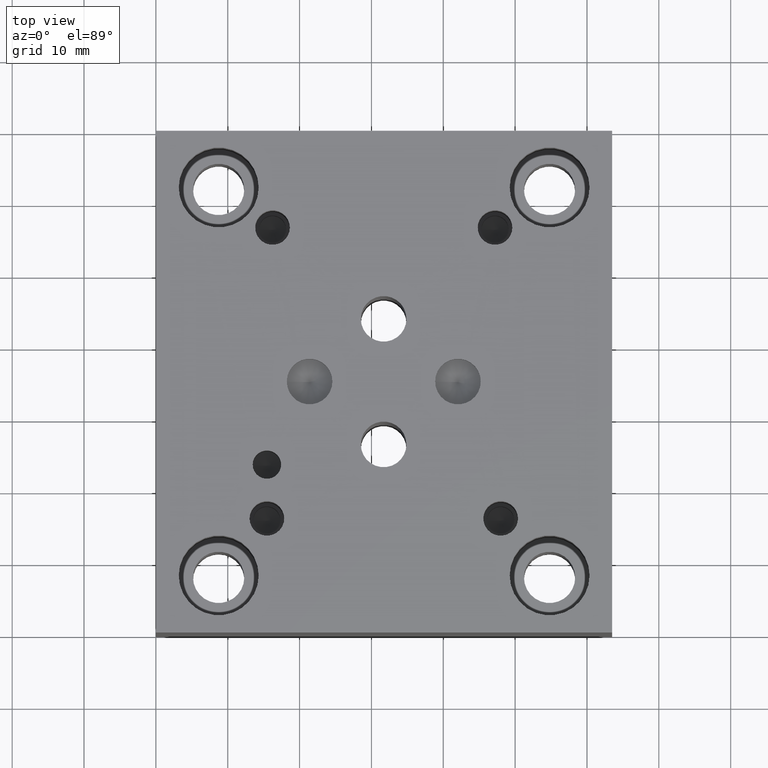
[diagram: clean part render]
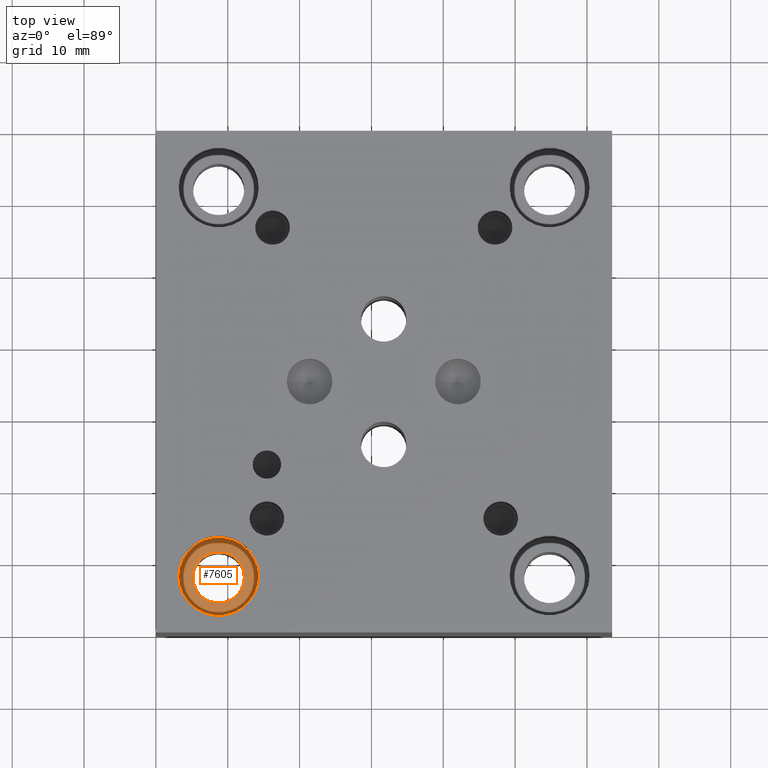
[diagram: same view with one face highlighted and labeled with its STEP entity id]
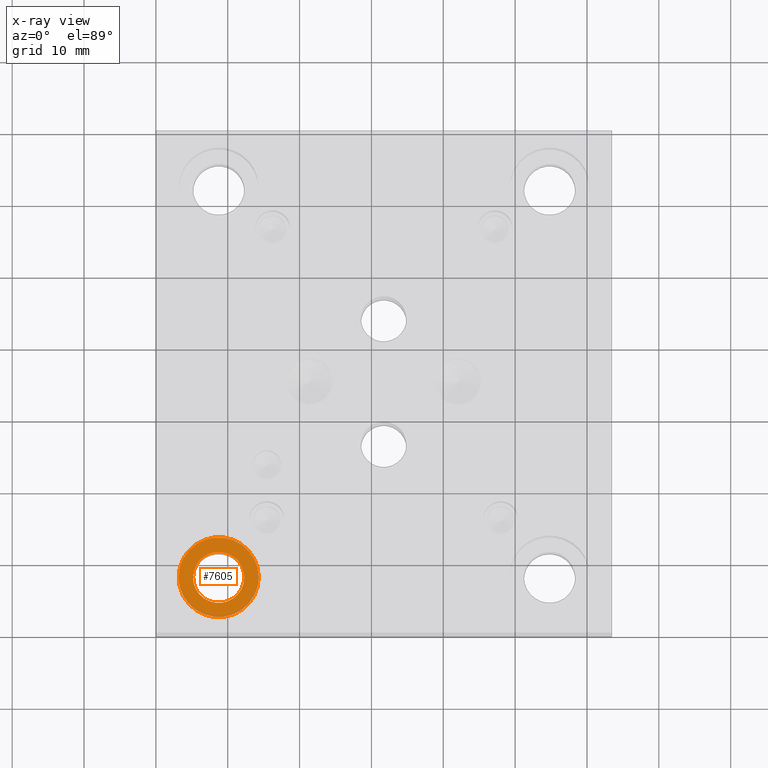
[diagram: x-ray of the same camera — body ghosted, the highlighted face saturated]
A machine part, top view. The second image highlights one B-rep face of the part: STEP entity #7605.
The next image is the same camera in x-ray: the body ghosted, the highlighted face saturated — about 5% of this face is hidden behind the body in this view.
In plain terms, the highlighted planar face has unit normal (0, 0, 1).
Its self-contained STEP definition (entity closure, byte-faithful):
#82=CIRCLE('',#7960,5.5626);
#83=CIRCLE('',#7961,3.5687);
#174=FACE_BOUND('',#1282,.T.);
#840=FACE_OUTER_BOUND('',#1281,.T.);
#1281=EDGE_LOOP('',(#6517));
#1282=EDGE_LOOP('',(#6518));
#3531=VERTEX_POINT('',#12832);
#3532=VERTEX_POINT('',#12834);
#4542=EDGE_CURVE('',#3531,#3531,#82,.T.);
#4543=EDGE_CURVE('',#3532,#3532,#83,.T.);
#6517=ORIENTED_EDGE('',*,*,#4542,.T.);
#6518=ORIENTED_EDGE('',*,*,#4543,.F.);
#6915=PLANE('',#7959);
#7605=ADVANCED_FACE('',(#840,#174),#6915,.T.);
#7959=AXIS2_PLACEMENT_3D('',#12831,#9370,#9371);
#7960=AXIS2_PLACEMENT_3D('',#12833,#9372,#9373);
#7961=AXIS2_PLACEMENT_3D('',#12835,#9374,#9375);
#9370=DIRECTION('center_axis',(0.,0.,1.));
#9371=DIRECTION('ref_axis',(1.,0.,0.));
#9372=DIRECTION('center_axis',(0.,0.,1.));
#9373=DIRECTION('ref_axis',(1.,0.,0.));
#9374=DIRECTION('center_axis',(0.,0.,1.));
#9375=DIRECTION('ref_axis',(1.,0.,0.));
#12831=CARTESIAN_POINT('Origin',(8.7376,7.9502,22.225));
#12832=CARTESIAN_POINT('',(3.175,7.9502,22.225));
#12833=CARTESIAN_POINT('Origin',(8.7376,7.9502,22.225));
#12834=CARTESIAN_POINT('',(5.1689,7.9502,22.225));
#12835=CARTESIAN_POINT('Origin',(8.7376,7.9502,22.225));